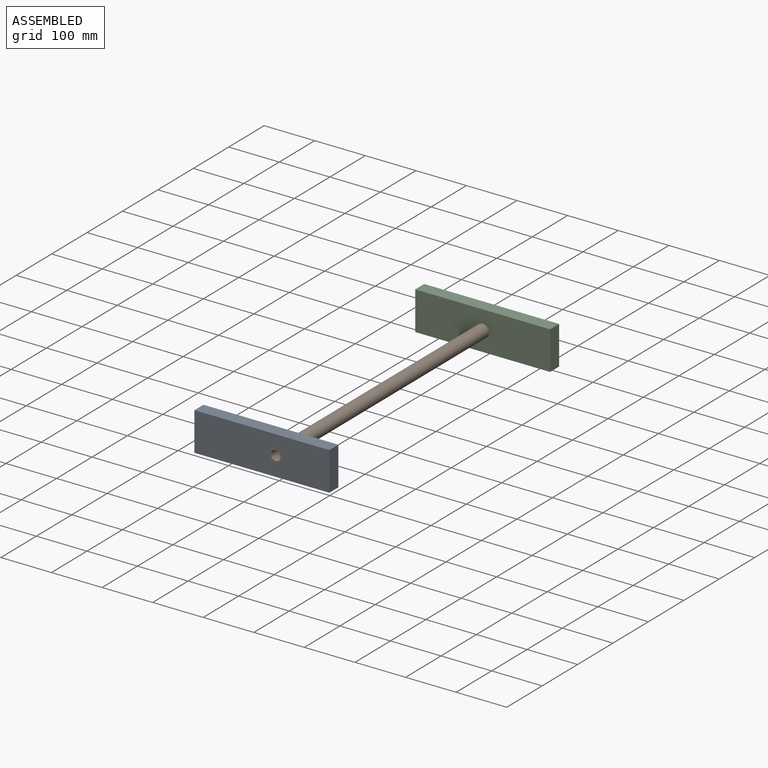
[diagram: assembled view]
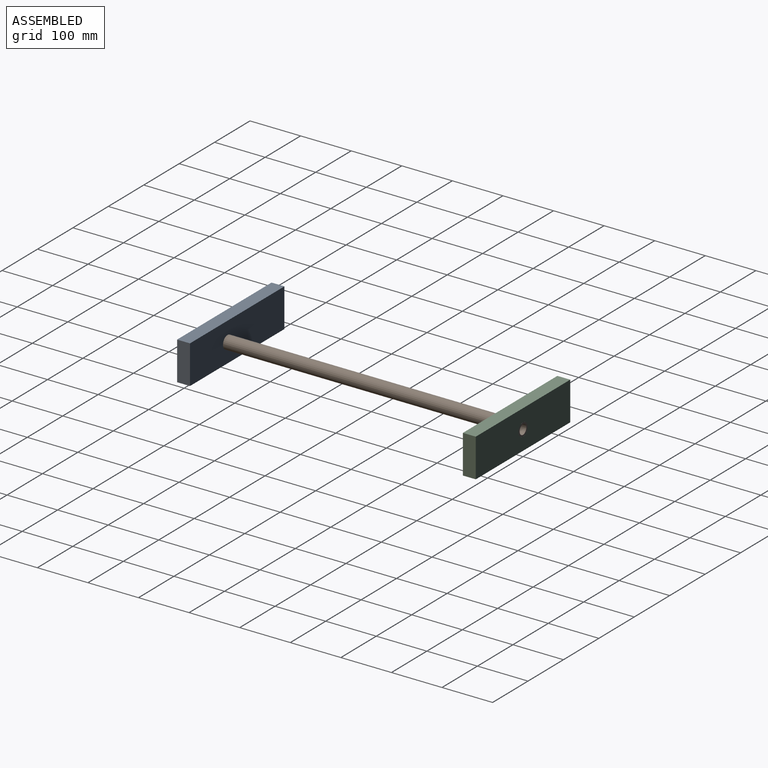
[diagram: assembled view, second angle]
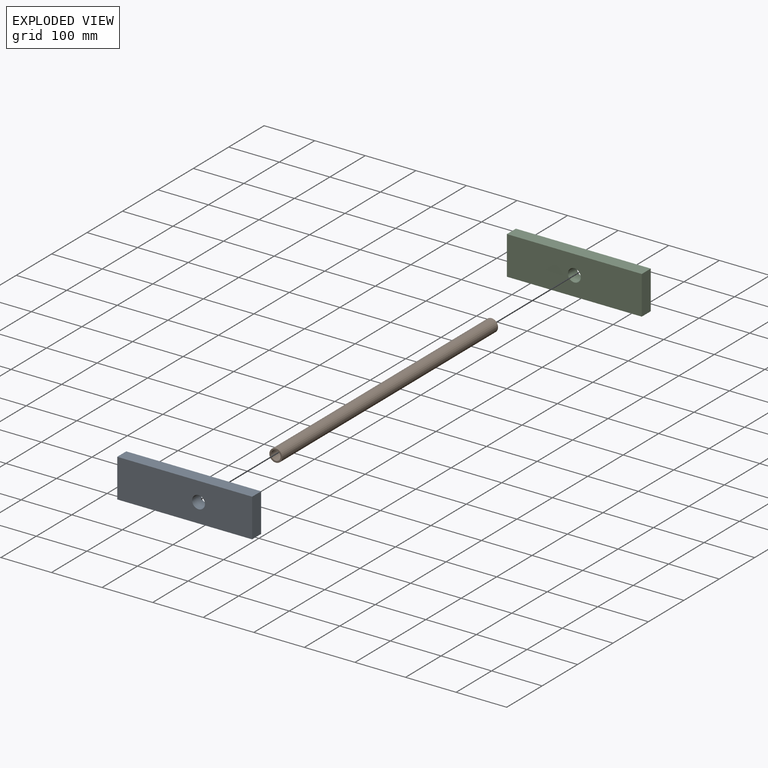
[diagram: exploded view]
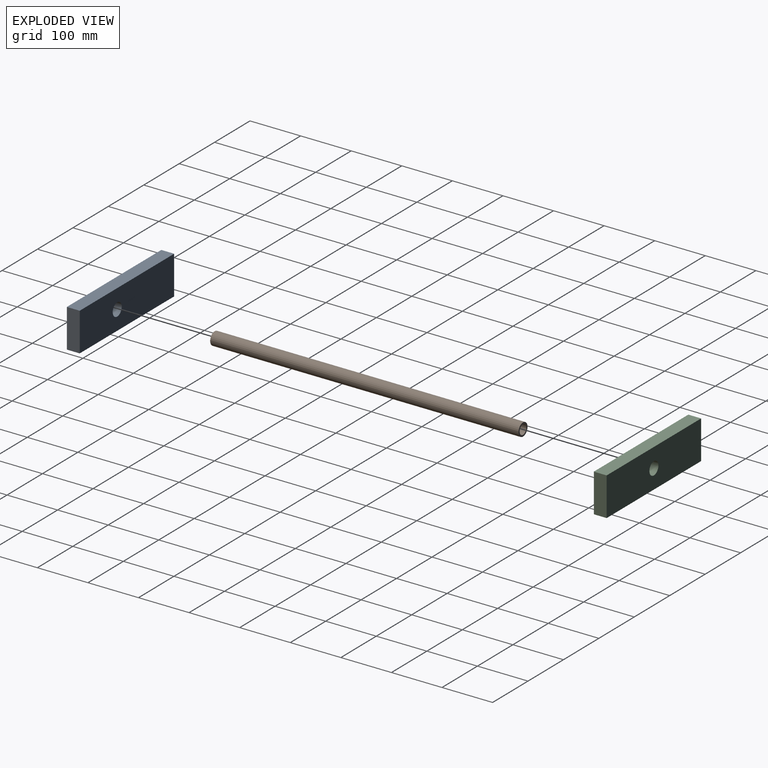
[diagram: exploded view, second angle]
ASSEMBLY  parts=3 mates=2
PART A: 7 faces, bbox 266.7x25.4x76.2 mm
  f0: plane 266.7x25.4mm, normal (0,0,1), area 6774.2mm2, adj f1,f3,f4,f5
  f1: plane 76.2x25.4mm, normal (-1,0,0), area 1935.5mm2, adj f0,f2,f4,f5
  f2: plane 266.7x25.4mm, normal (0,0,-1), area 6774.2mm2, adj f1,f3,f4,f5
  f3: plane 76.2x25.4mm, normal (1,0,0), area 1935.5mm2, adj f0,f2,f4,f5
  f4: plane 266.7x76.2mm, normal (0,1,0), area 19815.8mm2, adj f0,f1,f2,f3,f6
  f5: plane 266.7x76.2mm, normal (0,-1,0), area 19815.8mm2, adj f0,f1,f2,f3,f6
  f6: cylinder r=12.7mm len=25.4mm, axis (0,-1,0), area 2026.8mm2, adj f4,f5
PART B: 4 faces, bbox 25.4x609.6x25.4 mm
  f0: cylinder r=9.53mm len=609.6mm, axis (0,1,0), area 36482.9mm2, adj f2,f3
  f1: cylinder r=12.7mm len=609.6mm, axis (0,1,0), area 48643.9mm2, adj f2,f3
  f2: plane 25.4x25.4mm, normal (0,-1,0), area 221.7mm2, adj f0,f1
  f3: plane 25.4x25.4mm, normal (0,1,0), area 221.7mm2, adj f0,f1
PART C: 7 faces, bbox 266.7x25.4x76.2 mm
  f0: plane 266.7x25.4mm, normal (0,0,1), area 6774.2mm2, adj f1,f3,f4,f5
  f1: plane 76.2x25.4mm, normal (-1,0,0), area 1935.5mm2, adj f0,f2,f4,f5
  f2: plane 266.7x25.4mm, normal (0,0,-1), area 6774.2mm2, adj f1,f3,f4,f5
  f3: plane 76.2x25.4mm, normal (1,0,0), area 1935.5mm2, adj f0,f2,f4,f5
  f4: plane 266.7x76.2mm, normal (0,-1,0), area 19815.8mm2, adj f0,f1,f2,f3,f6
  f5: plane 266.7x76.2mm, normal (0,1,0), area 19815.8mm2, adj f0,f1,f2,f3,f6
  f6: cylinder r=12.7mm len=25.4mm, axis (0,1,0), area 2026.8mm2, adj f4,f5
PLACE A at identity
PLACE B t=(23.52,0,-12.81)mm
PLACE C t=(50.13,0,-41.69)mm
MATE fastened B.f0 <-> C.f6  axis (0,1,0) through (0,0,0)mm
MATE fastened B.f0 <-> A.f6  axis (0,-1,0) through (0,-609.6,0)mm
